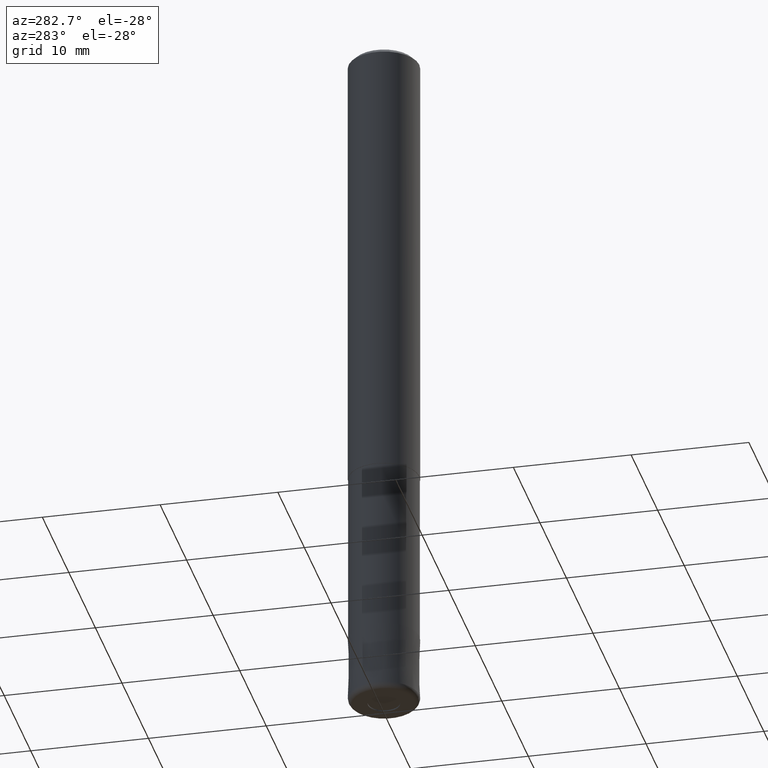
[diagram: clean part render]
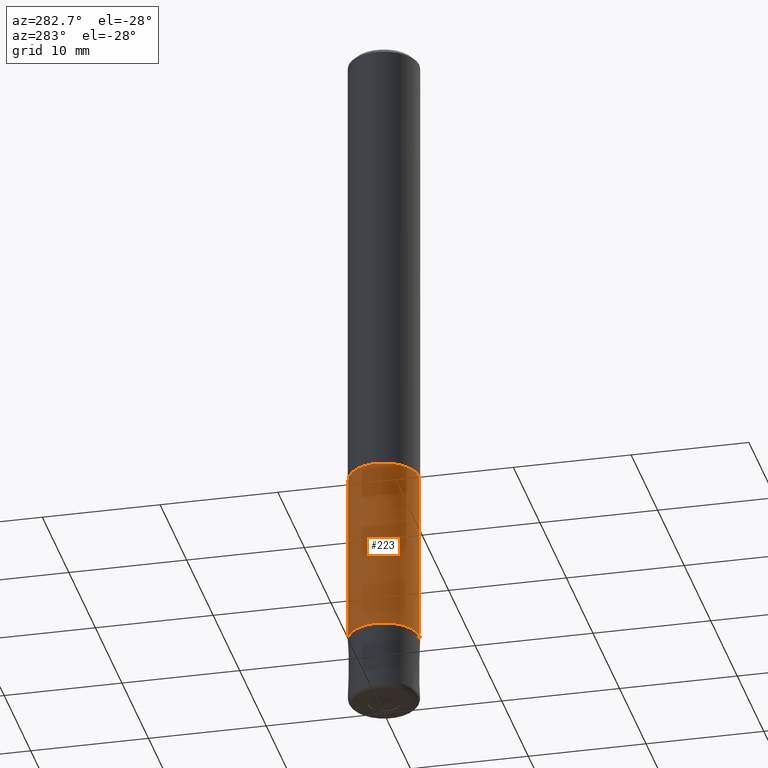
[diagram: same view with one face highlighted and labeled with its STEP entity id]
A machine part, auxiliary view. The second image highlights one B-rep face of the part: STEP entity #223.
In plain terms, the highlighted cylindrical surface (edge-blend (fillet) strip) has radius 2.975 mm, axis along (-0, -0, 1).
Its self-contained STEP definition (entity closure, byte-faithful):
#133=VERTEX_POINT('',#323);
#147=EDGE_CURVE('',#133,#275,#339,.T.);
#149=VERTEX_POINT('',#341);
#181=EDGE_CURVE('',#133,#149,#382,.T.);
#189=VERTEX_POINT('',#390);
#219=EDGE_CURVE('',#189,#149,#424,.T.);
#223=ADVANCED_FACE('',(#428),#429,.T.);
#259=EDGE_CURVE('',#275,#189,#467,.T.);
#275=VERTEX_POINT('',#486);
#323=CARTESIAN_POINT('',(3.64314267230388E-016,-2.97495,-54.0));
#339=LINE('',#549,#550);
#341=CARTESIAN_POINT('',(0.0,2.97495,-54.0));
#382=CIRCLE('',#601,2.97495);
#390=CARTESIAN_POINT('',(0.0,2.97495,-39.0));
#424=LINE('',#652,#653);
#428=FACE_OUTER_BOUND('',#658,.T.);
#429=CYLINDRICAL_SURFACE('',#659,2.97495);
#467=CIRCLE('',#709,2.97495);
#486=CARTESIAN_POINT('',(3.64314267230388E-016,-2.97495,-39.0));
#549=CARTESIAN_POINT('',(3.64314267230388E-016,-2.97495,-46.5));
#550=VECTOR('',#785,1.0);
#601=AXIS2_PLACEMENT_3D('',#859,#860,#861);
#652=CARTESIAN_POINT('',(-3.64314267230388E-016,2.97495,-46.5));
#653=VECTOR('',#914,1.0);
#658=EDGE_LOOP('',(#919,#920,#921,#922));
#659=AXIS2_PLACEMENT_3D('',#923,#924,#925);
#709=AXIS2_PLACEMENT_3D('',#964,#965,#966);
#785=DIRECTION('',(-0.0,-0.0,1.0));
#859=CARTESIAN_POINT('',(0.0,0.0,-54.0));
#860=DIRECTION('',(0.0,0.0,-1.0));
#861=DIRECTION('',(0.0,1.0,0.0));
#914=DIRECTION('',(0.0,0.0,-1.0));
#919=ORIENTED_EDGE('',*,*,#219,.T.);
#920=ORIENTED_EDGE('',*,*,#181,.F.);
#921=ORIENTED_EDGE('',*,*,#147,.T.);
#922=ORIENTED_EDGE('',*,*,#259,.T.);
#923=CARTESIAN_POINT('',(0.0,0.0,-46.5));
#924=DIRECTION('',(-0.0,-0.0,1.0));
#925=DIRECTION('',(0.0,1.0,0.0));
#964=CARTESIAN_POINT('',(0.0,0.0,-39.0));
#965=DIRECTION('',(0.0,0.0,-1.0));
#966=DIRECTION('',(0.0,1.0,0.0));